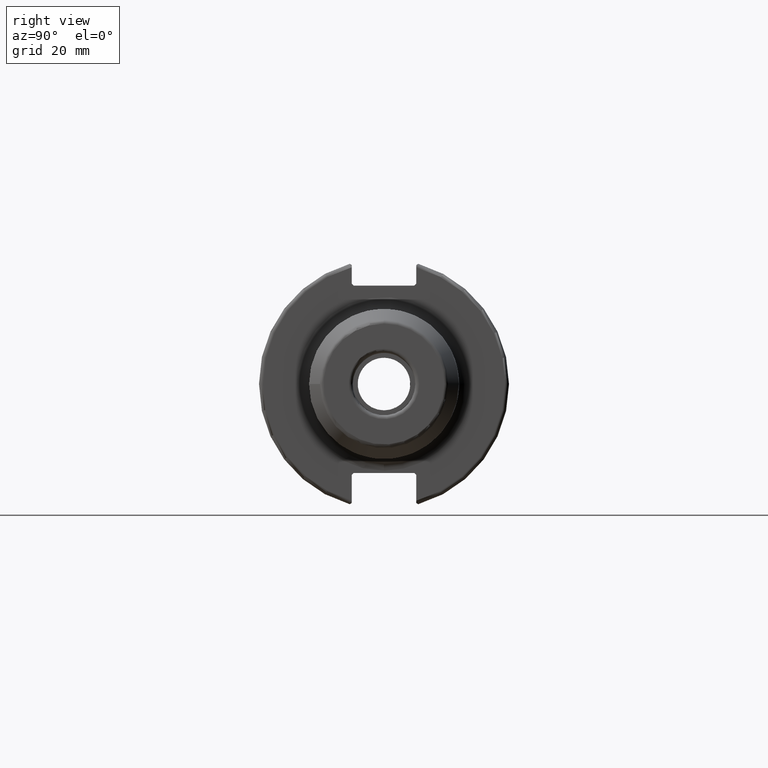
[diagram: clean part render]
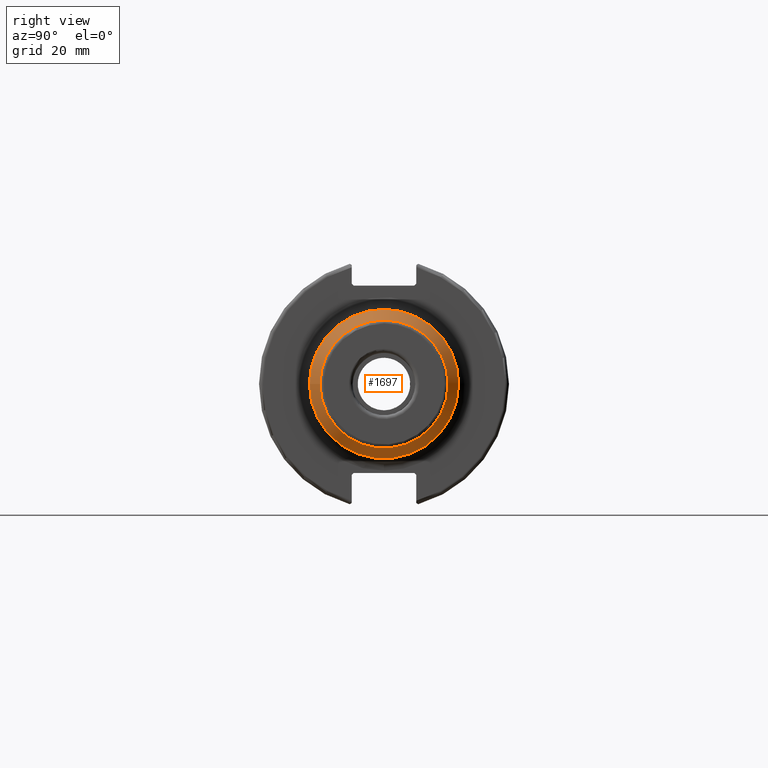
[diagram: same view with one face highlighted and labeled with its STEP entity id]
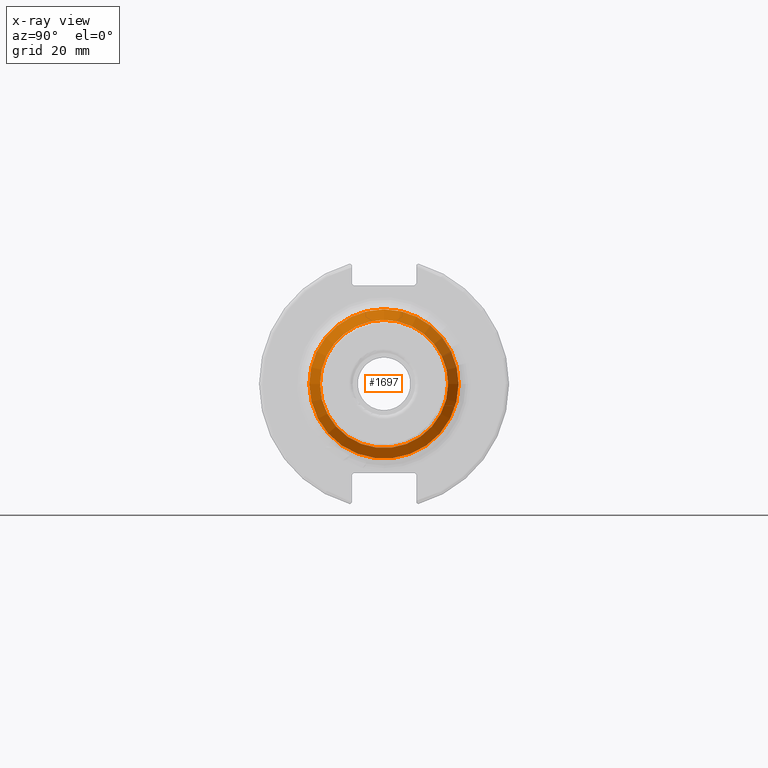
[diagram: x-ray of the same camera — body ghosted, the highlighted face saturated]
A machine part, right view. The second image highlights one B-rep face of the part: STEP entity #1697.
The next image is the same camera in x-ray: the body ghosted, the highlighted face saturated — about 0% of this face is hidden behind the body in this view.
In plain terms, the highlighted conical surface has half-angle 25 deg.
Its self-contained STEP definition (entity closure, byte-faithful):
#117=CONICAL_SURFACE('',#1823,17.525,0.436332312998581);
#135=FACE_OUTER_BOUND('',#226,.T.);
#226=EDGE_LOOP('',(#1161,#1162,#1163,#1164,#1165,#1166,#1167,#1168));
#360=LINE('',#2669,#452);
#452=VECTOR('',#2073,17.525);
#556=CIRCLE('',#1820,16.2692375262292);
#557=CIRCLE('',#1821,16.2692375262292);
#558=CIRCLE('',#1822,16.2692375262292);
#559=CIRCLE('',#1824,18.9563077870367);
#560=CIRCLE('',#1825,18.9563077870367);
#561=CIRCLE('',#1826,18.9563077870367);
#670=VERTEX_POINT('',#2660);
#671=VERTEX_POINT('',#2662);
#672=VERTEX_POINT('',#2664);
#673=VERTEX_POINT('',#2668);
#674=VERTEX_POINT('',#2670);
#675=VERTEX_POINT('',#2672);
#868=EDGE_CURVE('',#670,#671,#556,.T.);
#869=EDGE_CURVE('',#671,#672,#557,.T.);
#870=EDGE_CURVE('',#672,#670,#558,.T.);
#871=EDGE_CURVE('',#671,#673,#360,.T.);
#872=EDGE_CURVE('',#674,#673,#559,.T.);
#873=EDGE_CURVE('',#675,#674,#560,.T.);
#874=EDGE_CURVE('',#673,#675,#561,.T.);
#1161=ORIENTED_EDGE('',*,*,#870,.F.);
#1162=ORIENTED_EDGE('',*,*,#869,.F.);
#1163=ORIENTED_EDGE('',*,*,#871,.T.);
#1164=ORIENTED_EDGE('',*,*,#872,.F.);
#1165=ORIENTED_EDGE('',*,*,#873,.F.);
#1166=ORIENTED_EDGE('',*,*,#874,.F.);
#1167=ORIENTED_EDGE('',*,*,#871,.F.);
#1168=ORIENTED_EDGE('',*,*,#868,.F.);
#1697=ADVANCED_FACE('',(#135),#117,.T.);
#1820=AXIS2_PLACEMENT_3D('',#2663,#2065,#2066);
#1821=AXIS2_PLACEMENT_3D('',#2665,#2067,#2068);
#1822=AXIS2_PLACEMENT_3D('',#2666,#2069,#2070);
#1823=AXIS2_PLACEMENT_3D('',#2667,#2071,#2072);
#1824=AXIS2_PLACEMENT_3D('',#2671,#2074,#2075);
#1825=AXIS2_PLACEMENT_3D('',#2673,#2076,#2077);
#1826=AXIS2_PLACEMENT_3D('',#2674,#2078,#2079);
#2065=DIRECTION('center_axis',(1.,0.,0.));
#2066=DIRECTION('ref_axis',(0.,-1.,3.06161699786838E-17));
#2067=DIRECTION('center_axis',(1.,0.,0.));
#2068=DIRECTION('ref_axis',(0.,-1.,3.06161699786838E-17));
#2069=DIRECTION('center_axis',(1.,0.,0.));
#2070=DIRECTION('ref_axis',(0.,-1.,3.06161699786838E-17));
#2071=DIRECTION('center_axis',(-1.,0.,0.));
#2072=DIRECTION('ref_axis',(0.,1.,0.));
#2073=DIRECTION('',(-0.90630778703665,-0.422618261740699,-5.17558101501965E-17));
#2074=DIRECTION('center_axis',(-1.,0.,0.));
#2075=DIRECTION('ref_axis',(0.,-1.,3.06161699786838E-17));
#2076=DIRECTION('center_axis',(-1.,0.,0.));
#2077=DIRECTION('ref_axis',(0.,-1.,3.06161699786838E-17));
#2078=DIRECTION('center_axis',(-1.,0.,0.));
#2079=DIRECTION('ref_axis',(0.,-1.,3.06161699786838E-17));
#2660=CARTESIAN_POINT('',(94.7226182617407,-1.99240696610645E-15,16.2692375262292));
#2662=CARTESIAN_POINT('',(94.7226182617407,-16.2692375262292,-1.99240696610645E-15));
#2663=CARTESIAN_POINT('Origin',(94.7226182617407,0.,-2.49050870763307E-15));
#2664=CARTESIAN_POINT('',(94.7226182617407,16.2692375262292,-9.96203483053226E-16));
#2665=CARTESIAN_POINT('Origin',(94.7226182617407,0.,-2.49050870763307E-15));
#2666=CARTESIAN_POINT('Origin',(94.7226182617407,0.,-2.49050870763307E-15));
#2667=CARTESIAN_POINT('Origin',(92.0296269462229,0.,0.));
#2668=CARTESIAN_POINT('',(88.9601774915436,-18.9563077870367,-2.32147816550465E-15));
#2669=CARTESIAN_POINT('',(92.0296269462229,-17.525,-2.14619351550574E-15));
#2670=CARTESIAN_POINT('',(88.9601774915436,18.9563077870367,-5.80369541376162E-15));
#2671=CARTESIAN_POINT('Origin',(88.9601774915436,0.,-2.90184770688081E-15));
#2672=CARTESIAN_POINT('',(88.9601774915436,-2.32147816550465E-15,18.9563077870366));
#2673=CARTESIAN_POINT('Origin',(88.9601774915436,0.,-2.90184770688081E-15));
#2674=CARTESIAN_POINT('Origin',(88.9601774915436,0.,-2.90184770688081E-15));